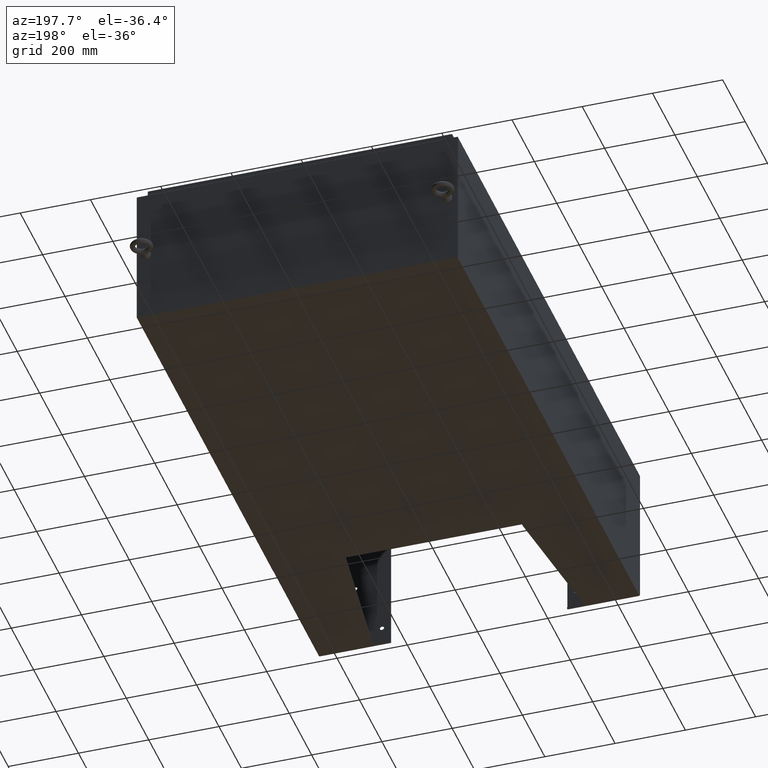
[diagram: clean part render]
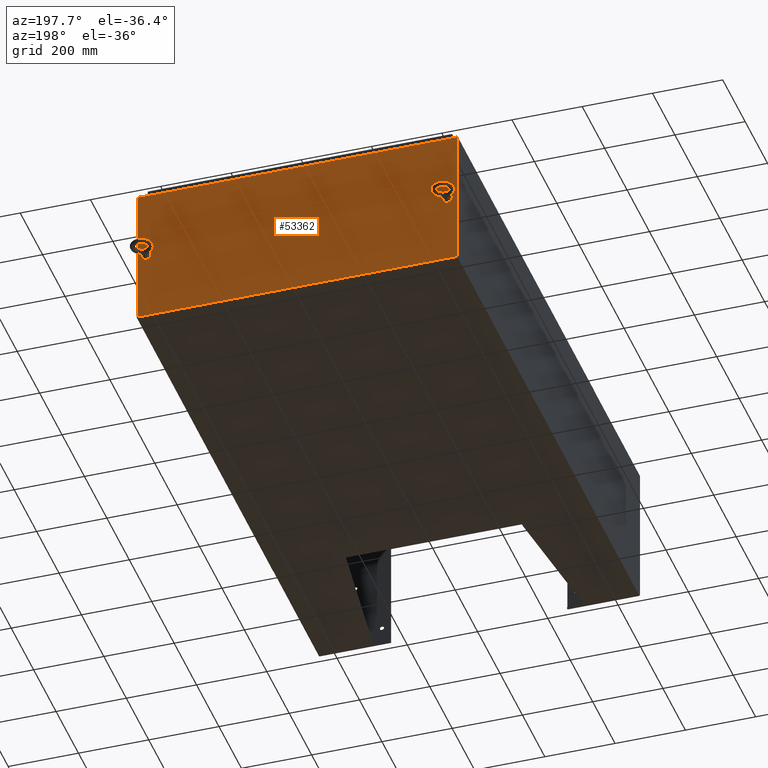
[diagram: same view with one face highlighted and labeled with its STEP entity id]
A machine part, auxiliary view. The second image highlights one B-rep face of the part: STEP entity #53362.
In plain terms, the highlighted planar face has unit normal (0, -1, 0).
Its self-contained STEP definition (entity closure, byte-faithful):
#41 = LINE ( 'NONE', #9646, #20530 ) ;
#343 = EDGE_CURVE ( 'NONE', #53288, #32423, #51987, .T. ) ;
#345 = DIRECTION ( 'NONE',  ( 0.0000000000000000000, 0.0000000000000000000, 1.000000000000000000 ) ) ;
#369 = LINE ( 'NONE', #23229, #10193 ) ;
#573 = DIRECTION ( 'NONE',  ( 0.0000000000000000000, 0.0000000000000000000, -1.000000000000000000 ) ) ;
#734 = ORIENTED_EDGE ( 'NONE', *, *, #3173, .F. ) ;
#1180 = DIRECTION ( 'NONE',  ( -1.000000000000000000, -0.0000000000000000000, -0.0000000000000000000 ) ) ;
#1206 = DIRECTION ( 'NONE',  ( 1.000000000000000000, 0.0000000000000000000, -6.096072018129154100E-017 ) ) ;
#1478 = DIRECTION ( 'NONE',  ( 0.0000000000000000000, 1.000000000000000000, 0.0000000000000000000 ) ) ;
#2424 = EDGE_CURVE ( 'NONE', #47242, #41075, #40945, .T. ) ;
#2770 = FACE_BOUND ( 'NONE', #37132, .T. ) ;
#3173 = EDGE_CURVE ( 'NONE', #5518, #20139, #49064, .T. ) ;
#3691 = PLANE ( 'NONE',  #20531 ) ;
#3820 = ORIENTED_EDGE ( 'NONE', *, *, #50059, .T. ) ;
#4573 = CIRCLE ( 'NONE', #46452, 0.3750000000000008300 ) ;
#5056 = CARTESIAN_POINT ( 'NONE',  ( 16.67455000000000700, 0.0000000000000000000, 7.925300000000000000 ) ) ;
#5411 = LINE ( 'NONE', #20081, #49300 ) ;
#5518 = VERTEX_POINT ( 'NONE', #5056 ) ;
#5744 = ORIENTED_EDGE ( 'NONE', *, *, #40770, .T. ) ;
#7221 = VECTOR ( 'NONE', #1206, 39.37007874015748100 ) ;
#7424 = CARTESIAN_POINT ( 'NONE',  ( 16.88530000000000100, 0.0000000000000000000, -0.3750000000000008300 ) ) ;
#7965 = DIRECTION ( 'NONE',  ( -0.0000000000000000000, -0.0000000000000000000, 1.000000000000000000 ) ) ;
#8012 = DIRECTION ( 'NONE',  ( -0.0000000000000000000, 1.000000000000000000, -0.0000000000000000000 ) ) ;
#8911 = EDGE_CURVE ( 'NONE', #32423, #20595, #36161, .T. ) ;
#9126 = CARTESIAN_POINT ( 'NONE',  ( -16.88530000000000100, 0.0000000000000000000, -0.3750000000000009400 ) ) ;
#9163 = DIRECTION ( 'NONE',  ( 0.0000000000000000000, 1.000000000000000000, 0.0000000000000000000 ) ) ;
#9415 = CARTESIAN_POINT ( 'NONE',  ( 16.67455000000000000, 0.0000000000000000000, 7.874950000000001900 ) ) ;
#9634 = ORIENTED_EDGE ( 'NONE', *, *, #46199, .F. ) ;
#9646 = CARTESIAN_POINT ( 'NONE',  ( -16.63720000000000400, -2.356218894535426900E-015, 7.912300000000008100 ) ) ;
#9802 = CARTESIAN_POINT ( 'NONE',  ( -17.92530000000000000, 0.0000000000000000000, 7.925300000000001800 ) ) ;
#9852 = ORIENTED_EDGE ( 'NONE', *, *, #27397, .F. ) ;
#10119 = VERTEX_POINT ( 'NONE', #47738 ) ;
#10193 = VECTOR ( 'NONE', #35328, 39.37007874015748100 ) ;
#11183 = CARTESIAN_POINT ( 'NONE',  ( -16.67455000000000000, 0.0000000000000000000, 7.874950000000001900 ) ) ;
#11218 = CARTESIAN_POINT ( 'NONE',  ( -16.88530000000000100, 0.0000000000000000000, 0.3750000000000007800 ) ) ;
#11569 = CARTESIAN_POINT ( 'NONE',  ( -16.67455000000000000, 0.0000000000000000000, 7.925300000000001800 ) ) ;
#11938 = CARTESIAN_POINT ( 'NONE',  ( 0.0000000000000000000, 0.0000000000000000000, 0.0000000000000000000 ) ) ;
#12530 = AXIS2_PLACEMENT_3D ( 'NONE', #47258, #9163, #21368 ) ;
#13812 = DIRECTION ( 'NONE',  ( 1.000000000000000000, 0.0000000000000000000, 0.0000000000000000000 ) ) ;
#14187 = ORIENTED_EDGE ( 'NONE', *, *, #343, .T. ) ;
#14888 = EDGE_CURVE ( 'NONE', #10119, #20710, #369, .T. ) ;
#15177 = VECTOR ( 'NONE', #34836, 39.37007874015748100 ) ;
#15238 = VECTOR ( 'NONE', #1180, 39.37007874015748100 ) ;
#16263 = DIRECTION ( 'NONE',  ( 0.0000000000000000000, 1.000000000000000000, 0.0000000000000000000 ) ) ;
#16352 = CARTESIAN_POINT ( 'NONE',  ( 17.92530000000000000, 0.0000000000000000000, 7.925300000000000000 ) ) ;
#16459 = LINE ( 'NONE', #43262, #15177 ) ;
#17110 = EDGE_CURVE ( 'NONE', #30975, #27191, #44610, .T. ) ;
#17489 = CARTESIAN_POINT ( 'NONE',  ( -17.92530000000000000, 0.0000000000000000000, -7.925299999999997300 ) ) ;
#18289 = CARTESIAN_POINT ( 'NONE',  ( 16.88530000000000100, 0.0000000000000000000, 0.0000000000000000000 ) ) ;
#18912 = AXIS2_PLACEMENT_3D ( 'NONE', #26037, #1478, #30238 ) ;
#18952 = ORIENTED_EDGE ( 'NONE', *, *, #8911, .T. ) ;
#19511 = CARTESIAN_POINT ( 'NONE',  ( -17.92530000000000000, 0.0000000000000000000, -7.925299999999997300 ) ) ;
#19682 = CARTESIAN_POINT ( 'NONE',  ( 16.63720000000000400, 0.0000000000000000000, 7.874950000000001900 ) ) ;
#20081 = CARTESIAN_POINT ( 'NONE',  ( -16.67455000000000000, -0.0000000000000000000, 0.0000000000000000000 ) ) ;
#20139 = VERTEX_POINT ( 'NONE', #9415 ) ;
#20195 = DIRECTION ( 'NONE',  ( 0.0000000000000000000, -0.0000000000000000000, -1.000000000000000000 ) ) ;
#20429 = VERTEX_POINT ( 'NONE', #9126 ) ;
#20530 = VECTOR ( 'NONE', #13812, 39.37007874015748100 ) ;
#20531 = AXIS2_PLACEMENT_3D ( 'NONE', #11938, #45002, #20195 ) ;
#20595 = VERTEX_POINT ( 'NONE', #11569 ) ;
#20698 = LINE ( 'NONE', #29992, #7221 ) ;
#20710 = VERTEX_POINT ( 'NONE', #28311 ) ;
#21351 = EDGE_LOOP ( 'NONE', ( #33303, #9634, #32744, #36567, #52104, #22236, #734, #5744, #3820, #28876, #14187, #18952 ) ) ;
#21368 = DIRECTION ( 'NONE',  ( 0.0000000000000000000, 0.0000000000000000000, 1.000000000000000000 ) ) ;
#21946 = VERTEX_POINT ( 'NONE', #31561 ) ;
#22236 = ORIENTED_EDGE ( 'NONE', *, *, #34873, .F. ) ;
#23229 = CARTESIAN_POINT ( 'NONE',  ( -16.63720000000000400, -0.0000000000000000000, 0.0000000000000000000 ) ) ;
#23318 = FACE_OUTER_BOUND ( 'NONE', #21351, .T. ) ;
#23961 = CARTESIAN_POINT ( 'NONE',  ( 16.88530000000000100, 0.0000000000000000000, 0.3750000000000008300 ) ) ;
#24833 = VERTEX_POINT ( 'NONE', #16352 ) ;
#24964 = CIRCLE ( 'NONE', #53163, 0.01867499999999949400 ) ;
#25004 = EDGE_CURVE ( 'NONE', #38362, #20595, #5411, .T. ) ;
#25126 = DIRECTION ( 'NONE',  ( -0.0000000000000000000, 1.000000000000000000, -0.0000000000000000000 ) ) ;
#25665 = CIRCLE ( 'NONE', #50345, 0.01867499999999949400 ) ;
#26037 = CARTESIAN_POINT ( 'NONE',  ( -16.88530000000000100, 0.0000000000000000000, -5.533055694631047000E-017 ) ) ;
#26174 = LINE ( 'NONE', #17489, #15238 ) ;
#26790 = CARTESIAN_POINT ( 'NONE',  ( -17.92530000000000000, 0.0000000000000000000, 7.925300000000001800 ) ) ;
#26867 = EDGE_CURVE ( 'NONE', #20429, #47219, #48549, .T. ) ;
#27191 = VERTEX_POINT ( 'NONE', #32506 ) ;
#27397 = EDGE_CURVE ( 'NONE', #41075, #47242, #4573, .T. ) ;
#27577 = CARTESIAN_POINT ( 'NONE',  ( 16.63720000000000400, 0.0000000000000000000, 0.0000000000000000000 ) ) ;
#28117 = CARTESIAN_POINT ( 'NONE',  ( 16.88530000000000100, 0.0000000000000000000, 0.0000000000000000000 ) ) ;
#28311 = CARTESIAN_POINT ( 'NONE',  ( -16.63720000000000400, -0.0000000000000000000, 7.874950000000001900 ) ) ;
#28876 = ORIENTED_EDGE ( 'NONE', *, *, #38196, .T. ) ;
#29700 = DIRECTION ( 'NONE',  ( 0.0000000000000000000, 0.0000000000000000000, 1.000000000000000000 ) ) ;
#29992 = CARTESIAN_POINT ( 'NONE',  ( -17.92530000000000000, 0.0000000000000000000, 7.925300000000001800 ) ) ;
#30238 = DIRECTION ( 'NONE',  ( 0.0000000000000000000, 0.0000000000000000000, 1.000000000000000000 ) ) ;
#30975 = VERTEX_POINT ( 'NONE', #19682 ) ;
#31210 = DIRECTION ( 'NONE',  ( 0.0000000000000000000, 0.0000000000000000000, 1.000000000000000000 ) ) ;
#31283 = ORIENTED_EDGE ( 'NONE', *, *, #2424, .F. ) ;
#31561 = CARTESIAN_POINT ( 'NONE',  ( 17.92530000000000000, 0.0000000000000000000, -7.925299999999997300 ) ) ;
#31750 = DIRECTION ( 'NONE',  ( 0.0000000000000000000, 1.000000000000000000, 0.0000000000000000000 ) ) ;
#32423 = VERTEX_POINT ( 'NONE', #9802 ) ;
#32506 = CARTESIAN_POINT ( 'NONE',  ( 16.63720000000000400, 0.0000000000000000000, 7.912300000000001900 ) ) ;
#32702 = CARTESIAN_POINT ( 'NONE',  ( 16.65587500000000200, 0.0000000000000000000, 7.874950000000001900 ) ) ;
#32744 = ORIENTED_EDGE ( 'NONE', *, *, #14888, .F. ) ;
#32841 = CIRCLE ( 'NONE', #18912, 0.3750000000000008300 ) ;
#32996 = FACE_BOUND ( 'NONE', #50619, .T. ) ;
#33303 = ORIENTED_EDGE ( 'NONE', *, *, #25004, .F. ) ;
#33337 = DIRECTION ( 'NONE',  ( -8.681145560800387200E-014, 0.0000000000000000000, -1.000000000000000000 ) ) ;
#34798 = VECTOR ( 'NONE', #43941, 39.37007874015748100 ) ;
#34836 = DIRECTION ( 'NONE',  ( 0.0000000000000000000, 0.0000000000000000000, -1.000000000000000000 ) ) ;
#34873 = EDGE_CURVE ( 'NONE', #20139, #30975, #25665, .T. ) ;
#35328 = DIRECTION ( 'NONE',  ( 0.0000000000000000000, 0.0000000000000000000, -1.000000000000000000 ) ) ;
#35418 = ORIENTED_EDGE ( 'NONE', *, *, #46330, .F. ) ;
#35517 = CARTESIAN_POINT ( 'NONE',  ( -17.92530000000000000, 0.0000000000000000000, 7.925300000000001800 ) ) ;
#36161 = LINE ( 'NONE', #26790, #34798 ) ;
#36299 = AXIS2_PLACEMENT_3D ( 'NONE', #28117, #16263, #345 ) ;
#36567 = ORIENTED_EDGE ( 'NONE', *, *, #46347, .T. ) ;
#36908 = DIRECTION ( 'NONE',  ( 0.0000000000000000000, 0.0000000000000000000, -1.000000000000000000 ) ) ;
#37132 = EDGE_LOOP ( 'NONE', ( #9852, #31283 ) ) ;
#38136 = VECTOR ( 'NONE', #29700, 39.37007874015748100 ) ;
#38196 = EDGE_CURVE ( 'NONE', #21946, #53288, #26174, .T. ) ;
#38269 = CARTESIAN_POINT ( 'NONE',  ( 16.67454999999931800, -0.0000000000000000000, -1.447541957108381700E-012 ) ) ;
#38362 = VERTEX_POINT ( 'NONE', #11183 ) ;
#40770 = EDGE_CURVE ( 'NONE', #5518, #24833, #20698, .T. ) ;
#40945 = CIRCLE ( 'NONE', #36299, 0.3750000000000008300 ) ;
#41075 = VERTEX_POINT ( 'NONE', #23961 ) ;
#42856 = VECTOR ( 'NONE', #33337, 39.37007874015748100 ) ;
#43169 = VECTOR ( 'NONE', #7965, 39.37007874015748100 ) ;
#43195 = DIRECTION ( 'NONE',  ( 0.0000000000000000000, 0.0000000000000000000, 1.000000000000000000 ) ) ;
#43262 = CARTESIAN_POINT ( 'NONE',  ( 17.92530000000000000, 0.0000000000000000000, 7.925300000000000000 ) ) ;
#43941 = DIRECTION ( 'NONE',  ( 1.000000000000000000, 0.0000000000000000000, -6.096072018129154100E-017 ) ) ;
#44610 = LINE ( 'NONE', #27577, #38136 ) ;
#45002 = DIRECTION ( 'NONE',  ( 0.0000000000000000000, -1.000000000000000000, 0.0000000000000000000 ) ) ;
#45722 = ORIENTED_EDGE ( 'NONE', *, *, #26867, .F. ) ;
#46199 = EDGE_CURVE ( 'NONE', #20710, #38362, #24964, .T. ) ;
#46330 = EDGE_CURVE ( 'NONE', #47219, #20429, #32841, .T. ) ;
#46347 = EDGE_CURVE ( 'NONE', #10119, #27191, #41, .T. ) ;
#46452 = AXIS2_PLACEMENT_3D ( 'NONE', #18289, #31750, #43195 ) ;
#47219 = VERTEX_POINT ( 'NONE', #11218 ) ;
#47242 = VERTEX_POINT ( 'NONE', #7424 ) ;
#47258 = CARTESIAN_POINT ( 'NONE',  ( -16.88530000000000100, 0.0000000000000000000, -5.533055694631047000E-017 ) ) ;
#47738 = CARTESIAN_POINT ( 'NONE',  ( -16.63720000000000400, -2.356218894535426900E-015, 7.912300000000008100 ) ) ;
#48549 = CIRCLE ( 'NONE', #12530, 0.3750000000000008300 ) ;
#49064 = LINE ( 'NONE', #38269, #42856 ) ;
#49300 = VECTOR ( 'NONE', #31210, 39.37007874015748100 ) ;
#49955 = CARTESIAN_POINT ( 'NONE',  ( -16.65587500000000200, 0.0000000000000000000, 7.874950000000001900 ) ) ;
#50059 = EDGE_CURVE ( 'NONE', #24833, #21946, #16459, .T. ) ;
#50345 = AXIS2_PLACEMENT_3D ( 'NONE', #32702, #8012, #36908 ) ;
#50619 = EDGE_LOOP ( 'NONE', ( #35418, #45722 ) ) ;
#51987 = LINE ( 'NONE', #35517, #43169 ) ;
#52104 = ORIENTED_EDGE ( 'NONE', *, *, #17110, .F. ) ;
#53163 = AXIS2_PLACEMENT_3D ( 'NONE', #49955, #25126, #573 ) ;
#53288 = VERTEX_POINT ( 'NONE', #19511 ) ;
#53362 = ADVANCED_FACE ( 'NONE', ( #2770, #32996, #23318 ), #3691, .F. ) ;